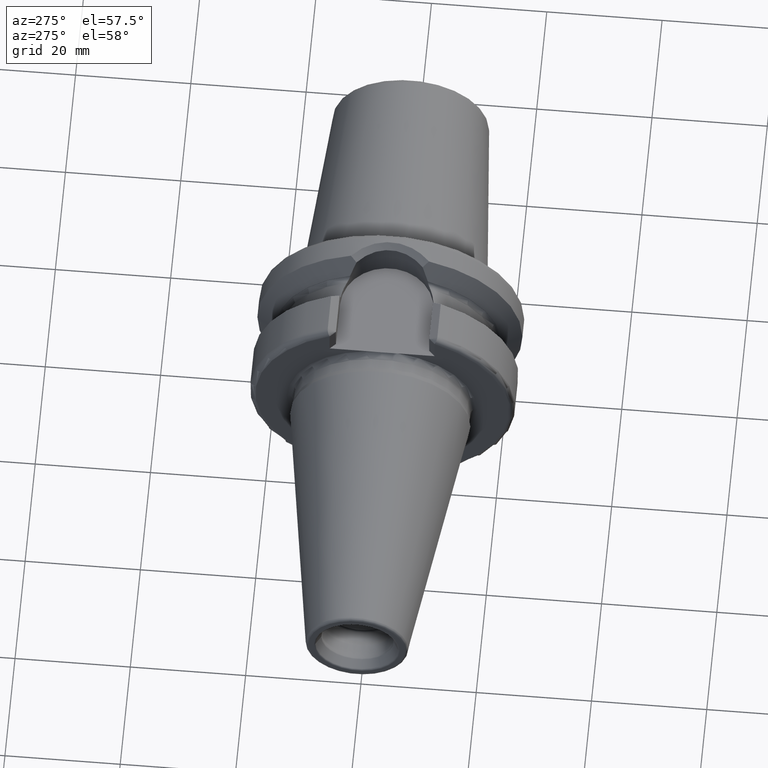
[diagram: clean part render]
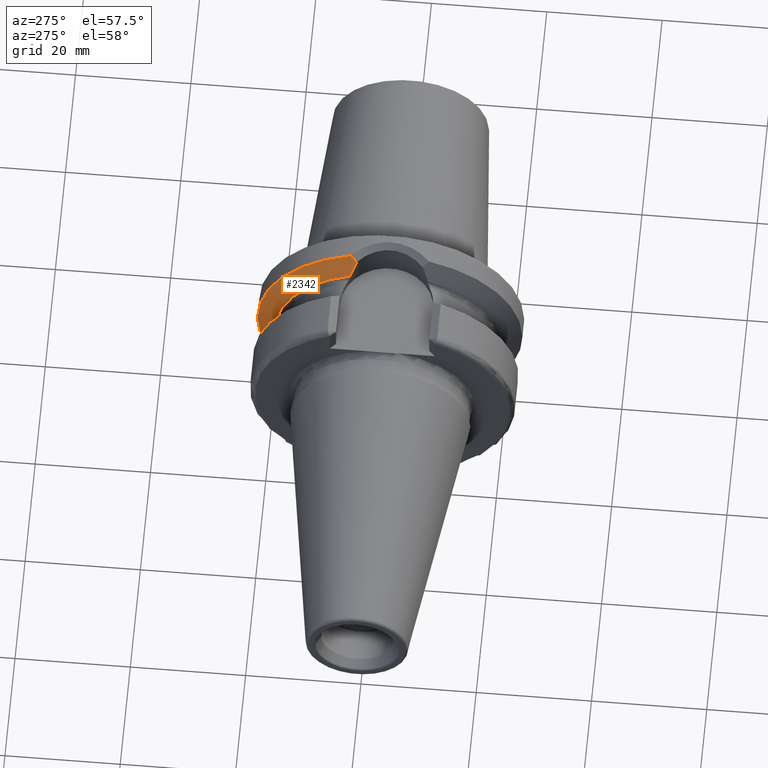
[diagram: same view with one face highlighted and labeled with its STEP entity id]
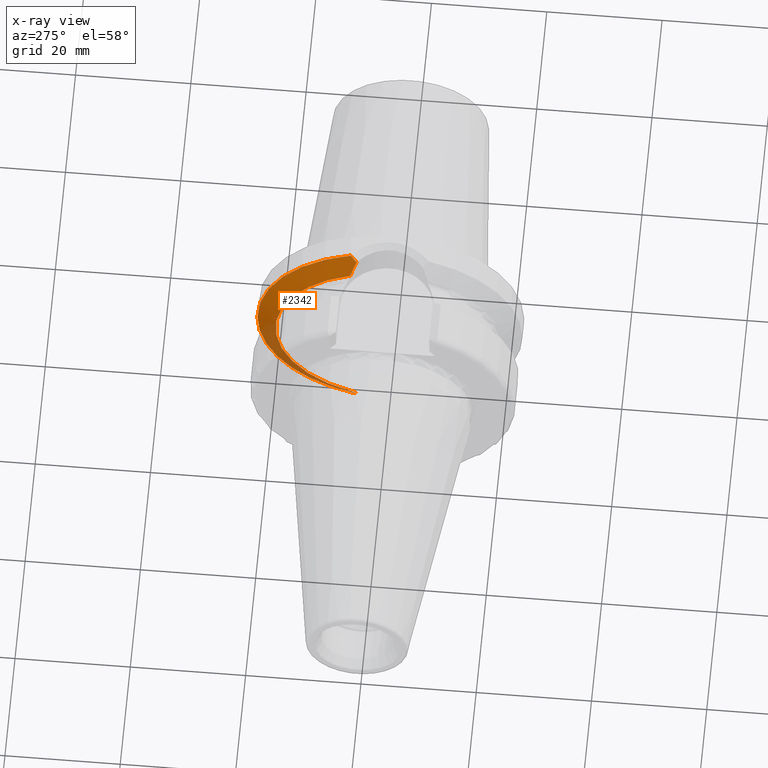
[diagram: x-ray of the same camera — body ghosted, the highlighted face saturated]
A machine part, auxiliary view. The second image highlights one B-rep face of the part: STEP entity #2342.
The next image is the same camera in x-ray: the body ghosted, the highlighted face saturated — about 22% of this face is hidden behind the body in this view.
In plain terms, the highlighted conical surface has half-angle 60 deg.
Its self-contained STEP definition (entity closure, byte-faithful):
#244=CARTESIAN_POINT('',(1.754907584126E1,0.E0,0.E0));
#245=DIRECTION('',(1.E0,0.E0,0.E0));
#246=DIRECTION('',(0.E0,2.802529554758E-1,-9.599261851554E-1));
#247=AXIS2_PLACEMENT_3D('',#244,#245,#246);
#321=CARTESIAN_POINT('',(1.56375E1,6.740639342822E0,-1.848861619239E1));
#322=CARTESIAN_POINT('',(1.580141693669E1,6.631635191826E0,-1.883055017756E1));
#323=CARTESIAN_POINT('',(1.612022880799E1,6.402379286160E0,-1.949407617939E1));
#324=CARTESIAN_POINT('',(1.657016835682E1,6.026547681230E0,-2.042714206942E1));
#325=CARTESIAN_POINT('',(1.685106915981E1,5.755169905209E0,-2.100794481881E1));
#326=CARTESIAN_POINT('',(1.698655422750E1,5.614445679829E0,-2.128775096196E1));
#519=CARTESIAN_POINT('',(1.685762423454E1,5.745354805374E0,2.102137764954E1));
#520=CARTESIAN_POINT('',(1.667158652396E1,5.930008876853E0,2.063686487213E1));
#521=CARTESIAN_POINT('',(1.628166811893E1,6.281182202369E0,1.982963416011E1));
#522=CARTESIAN_POINT('',(1.585764706705E1,6.594242365047E0,1.894784734616E1));
#523=CARTESIAN_POINT('',(1.56375E1,6.740639342822E0,1.848861619239E1));
#749=CARTESIAN_POINT('',(1.56375E1,0.E0,0.E0));
#750=DIRECTION('',(-1.E0,0.E0,0.E0));
#751=DIRECTION('',(0.E0,3.425286351209E-1,9.395073890727E-1));
#752=AXIS2_PLACEMENT_3D('',#749,#750,#751);
#766=CARTESIAN_POINT('',(1.698655422750E1,5.614445679829E0,-2.128775096196E1));
#767=CARTESIAN_POINT('',(1.704704785143E1,5.704776797294E0,-2.137228787957E1));
#768=CARTESIAN_POINT('',(1.716937480752E1,5.886585064290E0,-2.154284936475E1));
#769=CARTESIAN_POINT('',(1.735689240414E1,6.162776097467E0,-2.180317574240E1));
#770=CARTESIAN_POINT('',(1.748456978985E1,6.349213293706E0,-2.197969674892E1));
#771=CARTESIAN_POINT('',(1.754907584126E1,6.443015446388E0,-2.206870299672E1));
#773=CARTESIAN_POINT('',(1.754907584126E1,0.E0,0.E0));
#774=DIRECTION('',(1.E0,0.E0,0.E0));
#775=DIRECTION('',(0.E0,1.E0,0.E0));
#776=AXIS2_PLACEMENT_3D('',#773,#774,#775);
#918=CARTESIAN_POINT('',(1.754907584126E1,6.761871244710E0,2.197310167614E1));
#919=CARTESIAN_POINT('',(1.746924165528E1,6.646331333623E0,2.186398102541E1));
#920=CARTESIAN_POINT('',(1.731157385698E1,6.416997798511E0,2.164799004205E1));
#921=CARTESIAN_POINT('',(1.708106887013E1,6.078162644323E0,2.133072844085E1));
#922=CARTESIAN_POINT('',(1.693143417745E1,5.855724896324E0,2.112374379343E1));
#923=CARTESIAN_POINT('',(1.685762423454E1,5.745354805374E0,2.102137764954E1));
#1178=CARTESIAN_POINT('',(1.56375E1,6.740639342822E0,1.848861619239E1));
#1179=CARTESIAN_POINT('',(1.56375E1,6.740639342822E0,-1.848861619239E1));
#1180=VERTEX_POINT('',#1178);
#1181=VERTEX_POINT('',#1179);
#1194=CARTESIAN_POINT('',(1.754907584126E1,2.299E1,0.E0));
#1195=CARTESIAN_POINT('',(1.754907584126E1,6.761871244710E0,2.197310167614E1));
#1196=VERTEX_POINT('',#1194);
#1197=VERTEX_POINT('',#1195);
#1208=CARTESIAN_POINT('',(1.754907584126E1,6.443015446388E0,-2.206870299672E1));
#1209=VERTEX_POINT('',#1208);
#1297=VERTEX_POINT('',#519);
#1303=VERTEX_POINT('',#326);
#2325=CARTESIAN_POINT('',(1.659328792063E1,0.E0,0.E0));
#2326=DIRECTION('',(1.E0,0.E0,0.E0));
#2327=DIRECTION('',(0.E0,-1.E0,0.E0));
#2328=AXIS2_PLACEMENT_3D('',#2325,#2326,#2327);
#2329=CONICAL_SURFACE('',#2328,2.133452676021E1,6.E1);
#2330=ORIENTED_EDGE('',*,*,#1783,.T.);
#2331=ORIENTED_EDGE('',*,*,#1746,.T.);
#2333=ORIENTED_EDGE('',*,*,#2332,.T.);
#2334=ORIENTED_EDGE('',*,*,#1696,.T.);
#2336=ORIENTED_EDGE('',*,*,#2335,.T.);
#2338=ORIENTED_EDGE('',*,*,#2337,.T.);
#2339=ORIENTED_EDGE('',*,*,#1936,.T.);
#2340=EDGE_LOOP('',(#2330,#2331,#2333,#2334,#2336,#2338,#2339));
#2341=FACE_OUTER_BOUND('',#2340,.F.);
#2342=ADVANCED_FACE('',(#2341),#2329,.T.);
#248=CIRCLE('',#247,2.299E1);
#327=B_SPLINE_CURVE_WITH_KNOTS('',3,(#321,#322,#323,#324,#325,#326),
.UNSPECIFIED.,.F.,.F.,(4,1,1,4),(0.E0,3.333333333333E-1,6.666666666667E-1,1.E0),
.UNSPECIFIED.);
#524=B_SPLINE_CURVE_WITH_KNOTS('',3,(#519,#520,#521,#522,#523),.UNSPECIFIED.,
.F.,.F.,(4,1,4),(0.E0,5.E-1,1.E0),.UNSPECIFIED.);
#753=CIRCLE('',#752,1.967905352042E1);
#772=B_SPLINE_CURVE_WITH_KNOTS('',3,(#766,#767,#768,#769,#770,#771),
.UNSPECIFIED.,.F.,.F.,(4,1,1,4),(0.E0,3.333333333333E-1,6.666666666667E-1,1.E0),
.UNSPECIFIED.);
#777=CIRCLE('',#776,2.299E1);
#924=B_SPLINE_CURVE_WITH_KNOTS('',3,(#918,#919,#920,#921,#922,#923),
.UNSPECIFIED.,.F.,.F.,(4,1,1,4),(0.E0,3.333333333333E-1,6.666666666667E-1,1.E0),
.UNSPECIFIED.);
#1696=EDGE_CURVE('',#1209,#1196,#248,.T.);
#1746=EDGE_CURVE('',#1181,#1303,#327,.T.);
#1783=EDGE_CURVE('',#1180,#1181,#753,.T.);
#1936=EDGE_CURVE('',#1297,#1180,#524,.T.);
#2332=EDGE_CURVE('',#1303,#1209,#772,.T.);
#2335=EDGE_CURVE('',#1196,#1197,#777,.T.);
#2337=EDGE_CURVE('',#1197,#1297,#924,.T.);